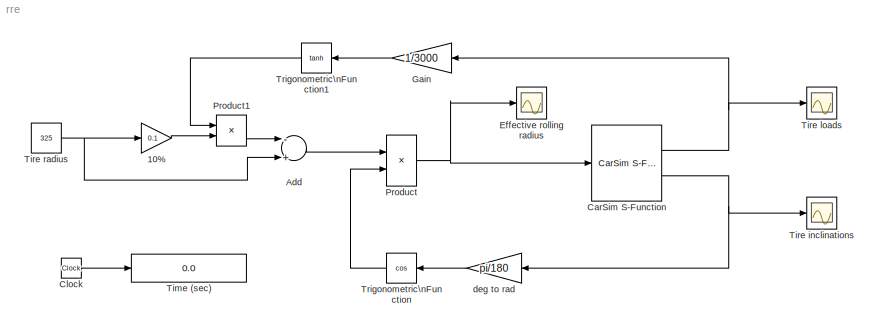
MODEL rre
KIND model
BLOCK [Gain] 10%
  Gain = 0.1
  OutDataTypeStr = Inherit: Inherit via internal rule
  ParamDataTypeStr = Inherit: Inherit via internal rule
  SID = 64
  SaturateOnIntegerOverflow = off
BLOCK [Sum] Add
  InputSameDT = off
  Inputs = -+
  OutDataTypeStr = Inherit: Inherit via internal rule
  Ports = [2, 1]
  SID = 68
  SaturateOnIntegerOverflow = off
BLOCK [Reference] CarSim S-Function  REF=Solver_SF/CarSim S-Function
  Ports = [1, 2]
  Priority = 1
  SID = 70
  SIMFILE = simfile.sim
  SourceBlock = Solver_SF/CarSim S-Function
  SourceType = Vehicle math model library
BLOCK [Clock] Clock
  Decimation = 10
  SID = 20
BLOCK [Scope] Effective rolling radius
  DataFormat = Array
  Floating = off
  LimitDataPoints = off
  NumInputPorts = 1
  Ports = [1]
  SID = 52
  SaveName = ScopeData1
  TimeRange = 6.3125
  YMax = 320
  YMin = 290
BLOCK [Gain] Gain
  Gain = 1/3000
  OutDataTypeStr = Inherit: Inherit via internal rule
  ParamDataTypeStr = Inherit: Inherit via internal rule
  SID = 67
  SaturateOnIntegerOverflow = off
BLOCK [Product] Product
  InputSameDT = off
  OutDataTypeStr = Inherit: Inherit via internal rule
  Ports = [2, 1]
  RndMeth = Floor
  SID = 53
  SaturateOnIntegerOverflow = off
BLOCK [Product] Product1
  InputSameDT = off
  OutDataTypeStr = Inherit: Inherit via internal rule
  Ports = [2, 1]
  RndMeth = Floor
  SID = 65
  SaturateOnIntegerOverflow = off
BLOCK [Display] Time (sec)
  Decimation = 100
  Format = bank
  Lockdown = off
  Ports = [1]
  SID = 40
BLOCK [Scope] Tire inclinations
  DataFormat = Array
  Floating = off
  LimitDataPoints = off
  NumInputPorts = 1
  Ports = [1]
  SID = 49
  TimeRange = 6.3125
  YMax = 2
  YMin = -3
BLOCK [Scope] Tire loads
  DataFormat = Array
  Floating = off
  LimitDataPoints = off
  NumInputPorts = 1
  Ports = [1]
  SID = 69
  SaveName = ScopeData2
  TimeRange = 6.3125
  YMax = 6000
  YMin = 0
BLOCK [Constant] Tire radius
  SID = 48
  Value = 325
BLOCK [Trigonometry] Trigonometric\nFunction
  Operator = cos
  Ports = [1, 1]
  SID = 56
BLOCK [Trigonometry] Trigonometric\nFunction1
  Operator = tanh
  Ports = [1, 1]
  SID = 66
BLOCK [Gain] deg to rad
  Gain = pi/180
  OutDataTypeStr = Inherit: Inherit via internal rule
  ParamDataTypeStr = Inherit: Inherit via internal rule
  SID = 51
  SaturateOnIntegerOverflow = off
LINE 10%:1 -> Product1:2
LINE Add:1 -> Product:1
NET CarSim S-Function:1 -> Gain:1, Tire loads:1
NET CarSim S-Function:2 -> Tire inclinations:1, deg to rad:1
LINE Clock:1 -> Time (sec):1
LINE Gain:1 -> Trigonometric\nFunction1:1
LINE Product1:1 -> Add:1
NET Product:1 -> CarSim S-Function:1, Effective rolling radius:1
NET Tire radius:1 -> 10%:1, Add:2
LINE Trigonometric\nFunction1:1 -> Product1:1
LINE Trigonometric\nFunction:1 -> Product:2
LINE deg to rad:1 -> Trigonometric\nFunction:1
note: NET lines group one-source signal fan-out (src -> all destinations, sorted); 1:1 wires keep LINE
